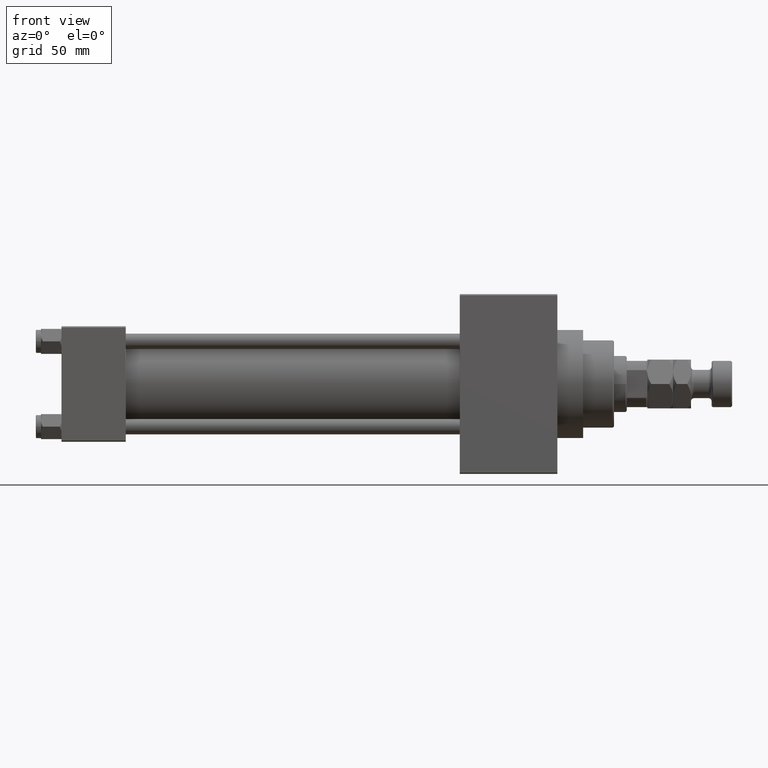
[diagram: clean part render]
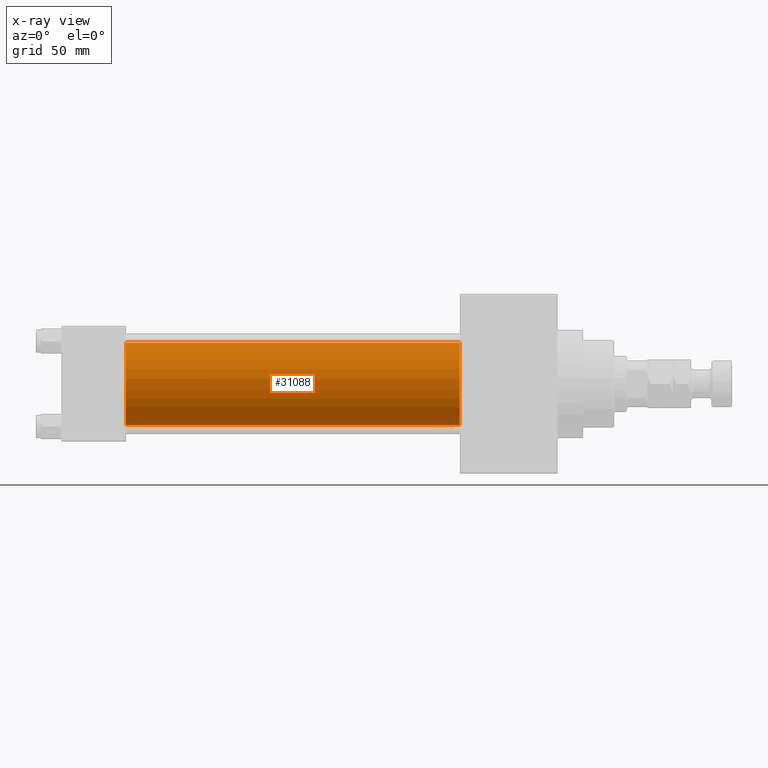
[diagram: x-ray — body ghosted, one internal face saturated and labeled with its STEP entity id]
A machine part, front view, then the same camera in x-ray: the body is ghosted and one INTERNAL B-rep face — a face not visible from any outside direction — is saturated and labeled: STEP entity #31088.
In plain terms, the highlighted cylindrical surface (partial cylindrical patch) has radius 16 mm, axis along (-1, -0, -0).
Its self-contained STEP definition (entity closure, byte-faithful):
#299 = DIRECTION ( 'NONE',  ( -1.000000000000000000, -0.000000000000000000, -0.000000000000000000 ) ) ;
#848 = EDGE_LOOP ( 'NONE', ( #34351, #26544, #42461, #49960 ) ) ;
#5319 = EDGE_CURVE ( 'NONE', #23502, #35742, #8013, .T. ) ;
#8013 = LINE ( 'NONE', #35760, #12777 ) ;
#8102 = CARTESIAN_POINT ( 'NONE',  ( 155.0000000000000000, -2.602085213965210642E-15, 16.00000000000000000 ) ) ;
#9761 = CARTESIAN_POINT ( 'NONE',  ( 155.0000000000000000, -2.602085213965210642E-15, 0.000000000000000000 ) ) ;
#12777 = VECTOR ( 'NONE', #299, 1000.000000000000000 ) ;
#13387 = DIRECTION ( 'NONE',  ( 0.000000000000000000, 0.000000000000000000, -1.000000000000000000 ) ) ;
#13515 = DIRECTION ( 'NONE',  ( 0.000000000000000000, 0.000000000000000000, -1.000000000000000000 ) ) ;
#14132 = CYLINDRICAL_SURFACE ( 'NONE', #20121, 16.00000000000000000 ) ;
#19895 = CARTESIAN_POINT ( 'NONE',  ( 155.0000000000000000, -6.426503353294456087E-16, -16.00000000000000000 ) ) ;
#20121 = AXIS2_PLACEMENT_3D ( 'NONE', #9761, #48818, #45462 ) ;
#22833 = VECTOR ( 'NONE', #27867, 1000.000000000000000 ) ;
#23502 = VERTEX_POINT ( 'NONE', #8102 ) ;
#24508 = LINE ( 'NONE', #19895, #22833 ) ;
#26544 = ORIENTED_EDGE ( 'NONE', *, *, #42299, .T. ) ;
#27867 = DIRECTION ( 'NONE',  ( -1.000000000000000000, -0.000000000000000000, -0.000000000000000000 ) ) ;
#28658 = AXIS2_PLACEMENT_3D ( 'NONE', #44347, #36645, #13515 ) ;
#31088 = ADVANCED_FACE ( 'NONE', ( #48564 ), #14132, .F. ) ;
#31902 = CARTESIAN_POINT ( 'NONE',  ( 155.0000000000000000, -6.426503353294456087E-16, -16.00000000000000000 ) ) ;
#32936 = CARTESIAN_POINT ( 'NONE',  ( 155.0000000000000000, -2.602085213965210642E-15, 0.000000000000000000 ) ) ;
#32971 = EDGE_CURVE ( 'NONE', #23502, #33155, #48035, .T. ) ;
#33155 = VERTEX_POINT ( 'NONE', #31902 ) ;
#34351 = ORIENTED_EDGE ( 'NONE', *, *, #32971, .T. ) ;
#35288 = CARTESIAN_POINT ( 'NONE',  ( 25.00000000000000000, -6.426503353294456087E-16, -16.00000000000000000 ) ) ;
#35742 = VERTEX_POINT ( 'NONE', #41520 ) ;
#35760 = CARTESIAN_POINT ( 'NONE',  ( 155.0000000000000000, -2.602085213965210642E-15, 16.00000000000000000 ) ) ;
#36645 = DIRECTION ( 'NONE',  ( 1.000000000000000000, 0.000000000000000000, 0.000000000000000000 ) ) ;
#39015 = AXIS2_PLACEMENT_3D ( 'NONE', #32936, #48581, #13387 ) ;
#41520 = CARTESIAN_POINT ( 'NONE',  ( 25.00000000000000000, -2.602085213965210642E-15, 16.00000000000000000 ) ) ;
#42299 = EDGE_CURVE ( 'NONE', #33155, #49254, #24508, .T. ) ;
#42461 = ORIENTED_EDGE ( 'NONE', *, *, #47429, .F. ) ;
#44347 = CARTESIAN_POINT ( 'NONE',  ( 25.00000000000000000, -2.602085213965210642E-15, 0.000000000000000000 ) ) ;
#45053 = CIRCLE ( 'NONE', #28658, 16.00000000000000000 ) ;
#45462 = DIRECTION ( 'NONE',  ( 0.000000000000000000, 0.000000000000000000, 1.000000000000000000 ) ) ;
#47429 = EDGE_CURVE ( 'NONE', #35742, #49254, #45053, .T. ) ;
#48035 = CIRCLE ( 'NONE', #39015, 16.00000000000000000 ) ;
#48564 = FACE_OUTER_BOUND ( 'NONE', #848, .T. ) ;
#48581 = DIRECTION ( 'NONE',  ( 1.000000000000000000, 0.000000000000000000, 0.000000000000000000 ) ) ;
#48818 = DIRECTION ( 'NONE',  ( -1.000000000000000000, -0.000000000000000000, -0.000000000000000000 ) ) ;
#49254 = VERTEX_POINT ( 'NONE', #35288 ) ;
#49960 = ORIENTED_EDGE ( 'NONE', *, *, #5319, .F. ) ;